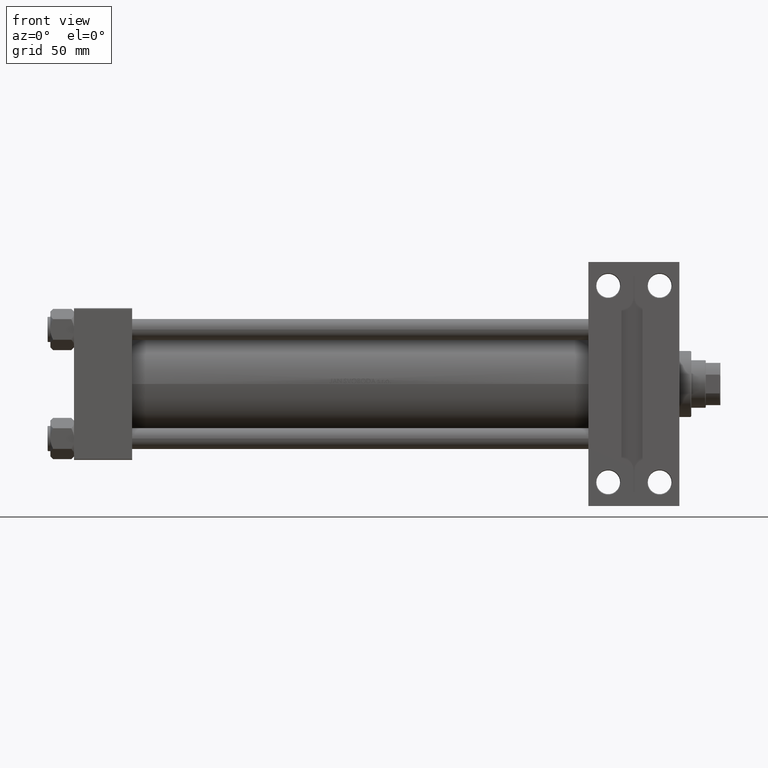
[diagram: clean part render]
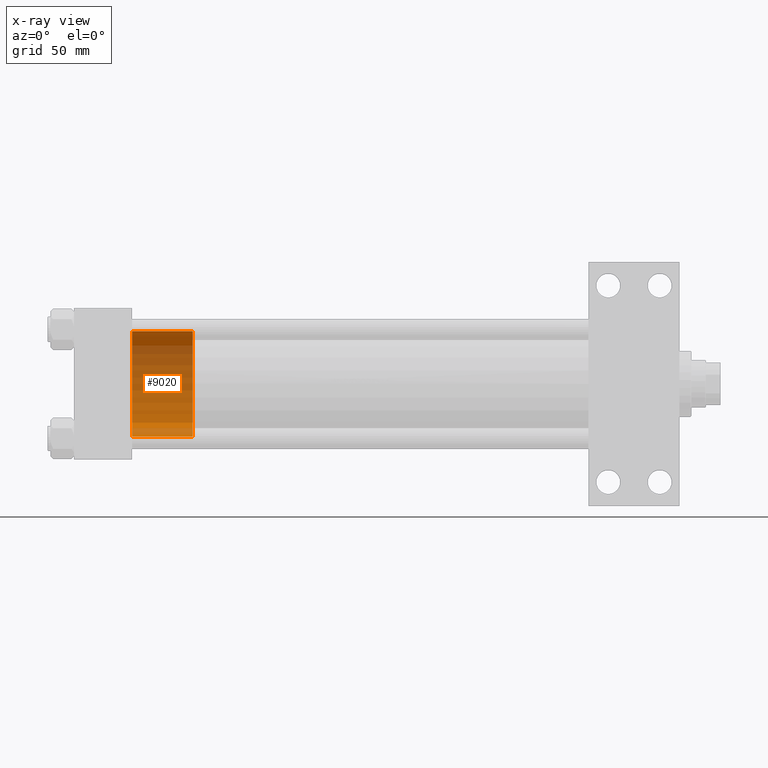
[diagram: x-ray — body ghosted, one internal face saturated and labeled with its STEP entity id]
A machine part, front view, then the same camera in x-ray: the body is ghosted and one INTERNAL B-rep face — a face not visible from any outside direction — is saturated and labeled: STEP entity #9020.
In plain terms, the highlighted cylindrical surface (partial cylindrical patch) has radius 40 mm, axis along (-1, 0, 0).
Its self-contained STEP definition (entity closure, byte-faithful):
#977 = EDGE_LOOP ( 'NONE', ( #5255, #31358, #14255, #19585 ) ) ;
#4402 = EDGE_CURVE ( 'NONE', #5921, #8016, #9381, .T. ) ;
#5255 = ORIENTED_EDGE ( 'NONE', *, *, #34296, .F. ) ;
#5804 = FACE_OUTER_BOUND ( 'NONE', #977, .T. ) ;
#5921 = VERTEX_POINT ( 'NONE', #25862 ) ;
#6248 = VERTEX_POINT ( 'NONE', #12652 ) ;
#6266 = DIRECTION ( 'NONE',  ( -0.000000000000000000, -0.000000000000000000, -1.000000000000000000 ) ) ;
#8016 = VERTEX_POINT ( 'NONE', #26010 ) ;
#8640 = DIRECTION ( 'NONE',  ( -0.000000000000000000, -0.000000000000000000, -1.000000000000000000 ) ) ;
#9020 = ADVANCED_FACE ( 'NONE', ( #5804 ), #39377, .T. ) ;
#9381 = CIRCLE ( 'NONE', #44306, 40.00000000000000000 ) ;
#9706 = DIRECTION ( 'NONE',  ( -1.000000000000000000, 0.000000000000000000, 0.000000000000000000 ) ) ;
#12652 = CARTESIAN_POINT ( 'NONE',  ( 40.00000000000000000, 4.898587196589413026E-15, 46.00000000000000000 ) ) ;
#13272 = CARTESIAN_POINT ( 'NONE',  ( 0.000000000000000000, 0.000000000000000000, 46.00000000000000000 ) ) ;
#14255 = ORIENTED_EDGE ( 'NONE', *, *, #47701, .T. ) ;
#15443 = CIRCLE ( 'NONE', #48047, 40.00000000000000000 ) ;
#16156 = DIRECTION ( 'NONE',  ( 1.000000000000000000, 0.000000000000000000, 0.000000000000000000 ) ) ;
#17157 = DIRECTION ( 'NONE',  ( 0.000000000000000000, 0.000000000000000000, 1.000000000000000000 ) ) ;
#17911 = LINE ( 'NONE', #21091, #18696 ) ;
#18128 = AXIS2_PLACEMENT_3D ( 'NONE', #39138, #20400, #9706 ) ;
#18696 = VECTOR ( 'NONE', #6266, 1000.000000000000000 ) ;
#19585 = ORIENTED_EDGE ( 'NONE', *, *, #4402, .T. ) ;
#20400 = DIRECTION ( 'NONE',  ( -0.000000000000000000, -0.000000000000000000, -1.000000000000000000 ) ) ;
#21091 = CARTESIAN_POINT ( 'NONE',  ( -40.00000000000000000, 0.000000000000000000, 46.00000000000000000 ) ) ;
#22741 = DIRECTION ( 'NONE',  ( 0.000000000000000000, 0.000000000000000000, 1.000000000000000000 ) ) ;
#23869 = VERTEX_POINT ( 'NONE', #28050 ) ;
#25862 = CARTESIAN_POINT ( 'NONE',  ( -40.00000000000000000, 0.000000000000000000, 0.000000000000000000 ) ) ;
#26010 = CARTESIAN_POINT ( 'NONE',  ( 40.00000000000000000, 4.898587196589413026E-15, 0.000000000000000000 ) ) ;
#26519 = VECTOR ( 'NONE', #8640, 1000.000000000000000 ) ;
#27358 = CARTESIAN_POINT ( 'NONE',  ( 0.000000000000000000, 0.000000000000000000, 0.000000000000000000 ) ) ;
#28050 = CARTESIAN_POINT ( 'NONE',  ( -40.00000000000000000, 0.000000000000000000, 46.00000000000000000 ) ) ;
#28644 = EDGE_CURVE ( 'NONE', #23869, #6248, #15443, .T. ) ;
#30754 = LINE ( 'NONE', #45842, #26519 ) ;
#31358 = ORIENTED_EDGE ( 'NONE', *, *, #28644, .F. ) ;
#34296 = EDGE_CURVE ( 'NONE', #6248, #8016, #30754, .T. ) ;
#38807 = DIRECTION ( 'NONE',  ( 1.000000000000000000, 0.000000000000000000, 0.000000000000000000 ) ) ;
#39138 = CARTESIAN_POINT ( 'NONE',  ( 0.000000000000000000, 0.000000000000000000, 46.00000000000000000 ) ) ;
#39377 = CYLINDRICAL_SURFACE ( 'NONE', #18128, 40.00000000000000000 ) ;
#44306 = AXIS2_PLACEMENT_3D ( 'NONE', #27358, #22741, #16156 ) ;
#45842 = CARTESIAN_POINT ( 'NONE',  ( 40.00000000000000000, 4.898587196589413026E-15, 46.00000000000000000 ) ) ;
#47701 = EDGE_CURVE ( 'NONE', #23869, #5921, #17911, .T. ) ;
#48047 = AXIS2_PLACEMENT_3D ( 'NONE', #13272, #17157, #38807 ) ;